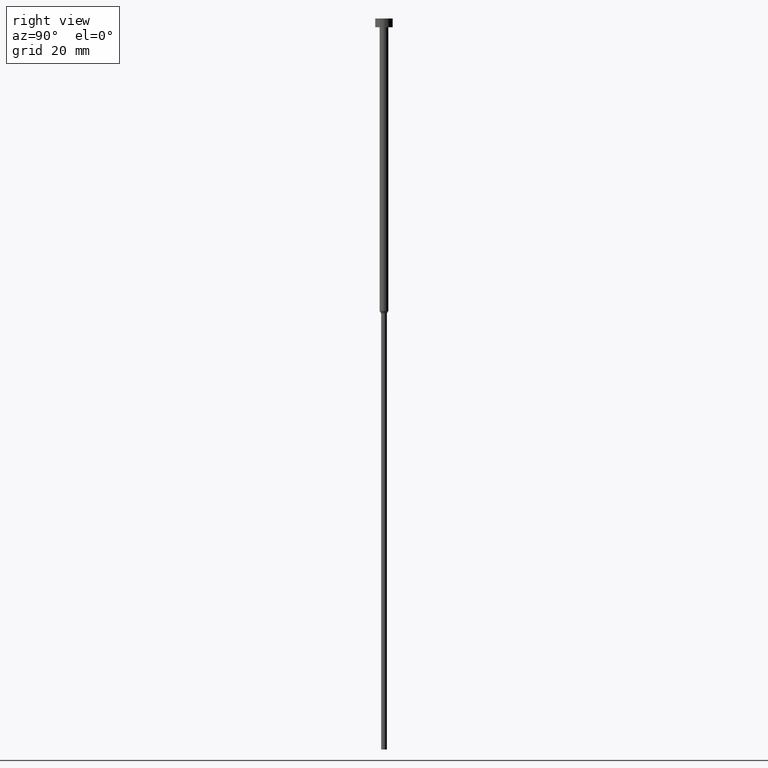
[diagram: clean part render]
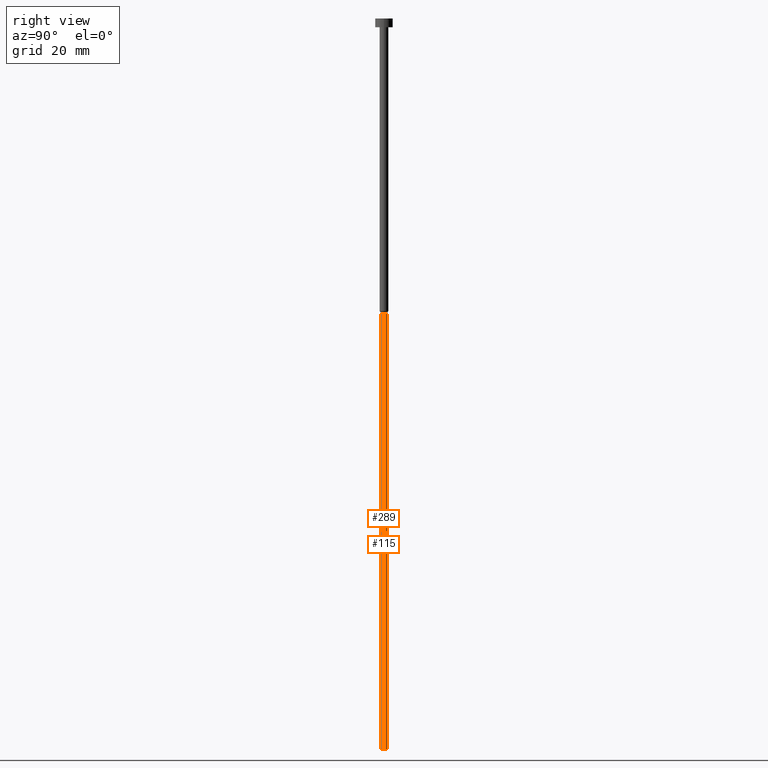
[diagram: same view with one multi-face feature highlighted, each face labeled with its STEP entity id]
A machine part, right view. The highlighted faces form ONE feature: a constant-radius fillet chain: 2 tangent blend faces with common blend radius 1 mm. The faces share edges in the B-rep.
Their STEP definitions:
[1] entity #115 (Cylinder):
#7 = CARTESIAN_POINT ( 'NONE',  ( -1.000000000000000000, 1.224646799147353207E-16, 0.000000000000000000 ) ) ;
#14 = CARTESIAN_POINT ( 'NONE',  ( -1.000000000000000000, 1.224646799147353207E-16, -100.8660254037844481 ) ) ;
#19 = CARTESIAN_POINT ( 'NONE',  ( -1.000000000000000000, 1.224646799147353207E-16, -250.0000000000000000 ) ) ;
#20 = CIRCLE ( 'NONE', #141, 1.000000000000000000 ) ;
#22 = VERTEX_POINT ( 'NONE', #312 ) ;
#38 = DIRECTION ( 'NONE',  ( -0.000000000000000000, -0.000000000000000000, 1.000000000000000000 ) ) ;
#73 = AXIS2_PLACEMENT_3D ( 'NONE', #332, #38, #195 ) ;
#75 = EDGE_CURVE ( 'NONE', #264, #205, #194, .T. ) ;
#88 = FACE_OUTER_BOUND ( 'NONE', #215, .T. ) ;
#95 = DIRECTION ( 'NONE',  ( 1.000000000000000000, 0.000000000000000000, 0.000000000000000000 ) ) ;
#103 = CARTESIAN_POINT ( 'NONE',  ( 1.000000000000000000, 0.000000000000000000, 0.000000000000000000 ) ) ;
#106 = VERTEX_POINT ( 'NONE', #220 ) ;
#114 = DIRECTION ( 'NONE',  ( -0.000000000000000000, -0.000000000000000000, 1.000000000000000000 ) ) ;
#115 = ADVANCED_FACE ( 'NONE', ( #88 ), #169, .T. ) ;
#127 = AXIS2_PLACEMENT_3D ( 'NONE', #150, #176, #95 ) ;
#137 = VECTOR ( 'NONE', #159, 1000.000000000000000 ) ;
#140 = CARTESIAN_POINT ( 'NONE',  ( 0.000000000000000000, 0.000000000000000000, -250.0000000000000000 ) ) ;
#141 = AXIS2_PLACEMENT_3D ( 'NONE', #140, #250, #307 ) ;
#150 = CARTESIAN_POINT ( 'NONE',  ( 0.000000000000000000, 0.000000000000000000, -100.8660254037844481 ) ) ;
#159 = DIRECTION ( 'NONE',  ( -0.000000000000000000, -0.000000000000000000, 1.000000000000000000 ) ) ;
#169 = CYLINDRICAL_SURFACE ( 'NONE', #73, 1.000000000000000000 ) ;
#176 = DIRECTION ( 'NONE',  ( -0.000000000000000000, -0.000000000000000000, 1.000000000000000000 ) ) ;
#179 = EDGE_CURVE ( 'NONE', #22, #264, #20, .T. ) ;
#181 = ORIENTED_EDGE ( 'NONE', *, *, #285, .F. ) ;
#194 = LINE ( 'NONE', #7, #333 ) ;
#195 = DIRECTION ( 'NONE',  ( 1.000000000000000000, 0.000000000000000000, 0.000000000000000000 ) ) ;
#197 = EDGE_CURVE ( 'NONE', #106, #205, #265, .T. ) ;
#205 = VERTEX_POINT ( 'NONE', #14 ) ;
#215 = EDGE_LOOP ( 'NONE', ( #218, #353, #351, #181 ) ) ;
#218 = ORIENTED_EDGE ( 'NONE', *, *, #179, .T. ) ;
#219 = LINE ( 'NONE', #103, #137 ) ;
#220 = CARTESIAN_POINT ( 'NONE',  ( 1.000000000000000000, 0.000000000000000000, -100.8660254037844481 ) ) ;
#250 = DIRECTION ( 'NONE',  ( -0.000000000000000000, -0.000000000000000000, 1.000000000000000000 ) ) ;
#264 = VERTEX_POINT ( 'NONE', #19 ) ;
#265 = CIRCLE ( 'NONE', #127, 1.000000000000000000 ) ;
#285 = EDGE_CURVE ( 'NONE', #22, #106, #219, .T. ) ;
#307 = DIRECTION ( 'NONE',  ( 1.000000000000000000, 0.000000000000000000, 0.000000000000000000 ) ) ;
#312 = CARTESIAN_POINT ( 'NONE',  ( 1.000000000000000000, 0.000000000000000000, -250.0000000000000000 ) ) ;
#332 = CARTESIAN_POINT ( 'NONE',  ( 0.000000000000000000, 0.000000000000000000, 0.000000000000000000 ) ) ;
#333 = VECTOR ( 'NONE', #114, 1000.000000000000000 ) ;
#351 = ORIENTED_EDGE ( 'NONE', *, *, #197, .F. ) ;
#353 = ORIENTED_EDGE ( 'NONE', *, *, #75, .T. ) ;
[2] entity #289 (Cylinder):
#7 = CARTESIAN_POINT ( 'NONE',  ( -1.000000000000000000, 1.224646799147353207E-16, 0.000000000000000000 ) ) ;
#14 = CARTESIAN_POINT ( 'NONE',  ( -1.000000000000000000, 1.224646799147353207E-16, -100.8660254037844481 ) ) ;
#17 = AXIS2_PLACEMENT_3D ( 'NONE', #248, #272, #49 ) ;
#19 = CARTESIAN_POINT ( 'NONE',  ( -1.000000000000000000, 1.224646799147353207E-16, -250.0000000000000000 ) ) ;
#22 = VERTEX_POINT ( 'NONE', #312 ) ;
#35 = CIRCLE ( 'NONE', #326, 1.000000000000000000 ) ;
#39 = DIRECTION ( 'NONE',  ( -0.000000000000000000, -0.000000000000000000, 1.000000000000000000 ) ) ;
#41 = EDGE_LOOP ( 'NONE', ( #297, #241, #68, #48 ) ) ;
#46 = CYLINDRICAL_SURFACE ( 'NONE', #17, 1.000000000000000000 ) ;
#48 = ORIENTED_EDGE ( 'NONE', *, *, #217, .F. ) ;
#49 = DIRECTION ( 'NONE',  ( 1.000000000000000000, 0.000000000000000000, 0.000000000000000000 ) ) ;
#62 = CIRCLE ( 'NONE', #237, 1.000000000000000000 ) ;
#65 = CARTESIAN_POINT ( 'NONE',  ( 0.000000000000000000, 0.000000000000000000, -100.8660254037844481 ) ) ;
#68 = ORIENTED_EDGE ( 'NONE', *, *, #285, .T. ) ;
#75 = EDGE_CURVE ( 'NONE', #264, #205, #194, .T. ) ;
#103 = CARTESIAN_POINT ( 'NONE',  ( 1.000000000000000000, 0.000000000000000000, 0.000000000000000000 ) ) ;
#106 = VERTEX_POINT ( 'NONE', #220 ) ;
#114 = DIRECTION ( 'NONE',  ( -0.000000000000000000, -0.000000000000000000, 1.000000000000000000 ) ) ;
#126 = DIRECTION ( 'NONE',  ( 1.000000000000000000, 0.000000000000000000, 0.000000000000000000 ) ) ;
#137 = VECTOR ( 'NONE', #159, 1000.000000000000000 ) ;
#159 = DIRECTION ( 'NONE',  ( -0.000000000000000000, -0.000000000000000000, 1.000000000000000000 ) ) ;
#187 = DIRECTION ( 'NONE',  ( 1.000000000000000000, 0.000000000000000000, 0.000000000000000000 ) ) ;
#192 = DIRECTION ( 'NONE',  ( -0.000000000000000000, -0.000000000000000000, 1.000000000000000000 ) ) ;
#194 = LINE ( 'NONE', #7, #333 ) ;
#205 = VERTEX_POINT ( 'NONE', #14 ) ;
#217 = EDGE_CURVE ( 'NONE', #205, #106, #35, .T. ) ;
#219 = LINE ( 'NONE', #103, #137 ) ;
#220 = CARTESIAN_POINT ( 'NONE',  ( 1.000000000000000000, 0.000000000000000000, -100.8660254037844481 ) ) ;
#237 = AXIS2_PLACEMENT_3D ( 'NONE', #328, #192, #187 ) ;
#241 = ORIENTED_EDGE ( 'NONE', *, *, #349, .T. ) ;
#248 = CARTESIAN_POINT ( 'NONE',  ( 0.000000000000000000, 0.000000000000000000, 0.000000000000000000 ) ) ;
#264 = VERTEX_POINT ( 'NONE', #19 ) ;
#270 = FACE_OUTER_BOUND ( 'NONE', #41, .T. ) ;
#272 = DIRECTION ( 'NONE',  ( -0.000000000000000000, -0.000000000000000000, 1.000000000000000000 ) ) ;
#285 = EDGE_CURVE ( 'NONE', #22, #106, #219, .T. ) ;
#289 = ADVANCED_FACE ( 'NONE', ( #270 ), #46, .T. ) ;
#297 = ORIENTED_EDGE ( 'NONE', *, *, #75, .F. ) ;
#312 = CARTESIAN_POINT ( 'NONE',  ( 1.000000000000000000, 0.000000000000000000, -250.0000000000000000 ) ) ;
#326 = AXIS2_PLACEMENT_3D ( 'NONE', #65, #39, #126 ) ;
#328 = CARTESIAN_POINT ( 'NONE',  ( 0.000000000000000000, 0.000000000000000000, -250.0000000000000000 ) ) ;
#333 = VECTOR ( 'NONE', #114, 1000.000000000000000 ) ;
#349 = EDGE_CURVE ( 'NONE', #264, #22, #62, .T. ) ;